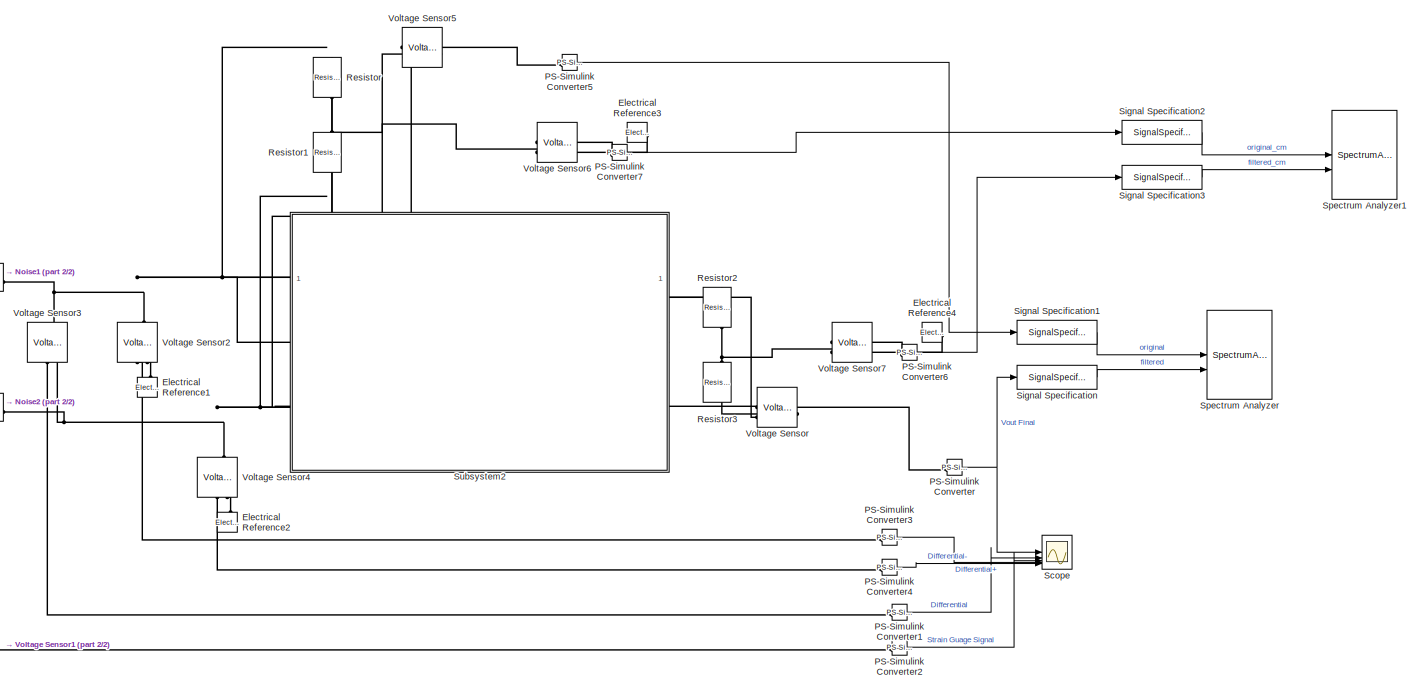
[diagram: root canvas - part 1/2, right side, full height]
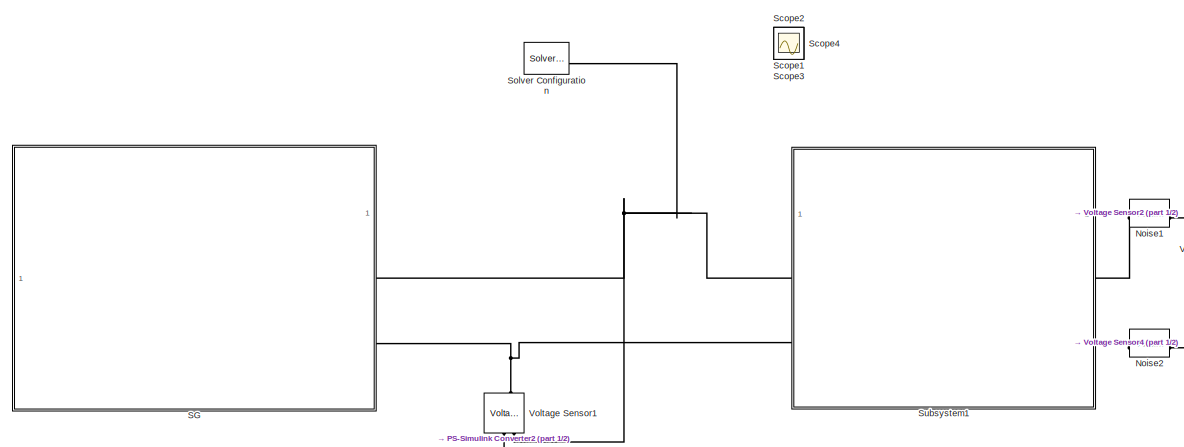
[diagram: root canvas - part 2/2, middle left region]
MODEL slx_d1087c4867b9
KIND model
CONFIG AbsTol = auto
CONFIG EnableMultiTasking = off
CONFIG FixedStep = 1/100000
CONFIG MaxStep = auto
CONFIG MinStep = auto
CONFIG RelTol = 1e-3
CONFIG SampleTimeConstraint = Unconstrained
CONFIG SolverName = FixedStepAuto
CONFIG StartTime = 0.0
CONFIG StopTime = 1
BLOCK [Reference] Electrical Reference1  REF=fl_lib/Electrical/Electrical Elements/Electrical Reference
  LibrarySourceBlock = ee_lib/Connectors &\nReferences/Electrical Reference
  NameLocation = right
  SourceBlock = fl_lib/Electrical/Electrical Elements/Electrical Reference
  SourceType = Electrical Reference
BLOCK [Reference] Electrical Reference2  REF=fl_lib/Electrical/Electrical Elements/Electrical Reference
  LibrarySourceBlock = ee_lib/Connectors &\nReferences/Electrical Reference
  NameLocation = right
  SourceBlock = fl_lib/Electrical/Electrical Elements/Electrical Reference
  SourceType = Electrical Reference
BLOCK [Reference] Electrical Reference3  REF=fl_lib/Electrical/Electrical Elements/Electrical Reference
  LibrarySourceBlock = ee_lib/Connectors &\nReferences/Electrical Reference
  NameLocation = top
  SourceBlock = fl_lib/Electrical/Electrical Elements/Electrical Reference
  SourceType = Electrical Reference
BLOCK [Reference] Electrical Reference4  REF=fl_lib/Electrical/Electrical Elements/Electrical Reference
  LibrarySourceBlock = ee_lib/Connectors &\nReferences/Electrical Reference
  NameLocation = top
  SourceBlock = fl_lib/Electrical/Electrical Elements/Electrical Reference
  SourceType = Electrical Reference
BLOCK [Reference] Noise1  REF=ee_lib/Sources/Voltage Source
  SourceBlock = ee_lib/Sources/Voltage Source
  SourceType = Voltage Source
BLOCK [Reference] Noise2  REF=ee_lib/Sources/Voltage Source
  SourceBlock = ee_lib/Sources/Voltage Source
  SourceType = Voltage Source
BLOCK [Reference] PS-Simulink Converter  REF=nesl_utility/PS-Simulink
Converter
  SourceBlock = nesl_utility/PS-Simulink\nConverter
  SourceType = PS-Simulink\nConverter
BLOCK [Reference] PS-Simulink Converter1  REF=nesl_utility/PS-Simulink
Converter
  SourceBlock = nesl_utility/PS-Simulink\nConverter
  SourceType = PS-Simulink\nConverter
BLOCK [Reference] PS-Simulink Converter2  REF=nesl_utility/PS-Simulink
Converter
  SourceBlock = nesl_utility/PS-Simulink\nConverter
  SourceType = PS-Simulink\nConverter
BLOCK [Reference] PS-Simulink Converter3  REF=nesl_utility/PS-Simulink
Converter
  SourceBlock = nesl_utility/PS-Simulink\nConverter
  SourceType = PS-Simulink\nConverter
BLOCK [Reference] PS-Simulink Converter4  REF=nesl_utility/PS-Simulink
Converter
  SourceBlock = nesl_utility/PS-Simulink\nConverter
  SourceType = PS-Simulink\nConverter
BLOCK [Reference] PS-Simulink Converter5  REF=nesl_utility/PS-Simulink
Converter
  SourceBlock = nesl_utility/PS-Simulink\nConverter
  SourceType = PS-Simulink\nConverter
BLOCK [Reference] PS-Simulink Converter6  REF=nesl_utility/PS-Simulink
Converter
  SourceBlock = nesl_utility/PS-Simulink\nConverter
  SourceType = PS-Simulink\nConverter
BLOCK [Reference] PS-Simulink Converter7  REF=nesl_utility/PS-Simulink
Converter
  SourceBlock = nesl_utility/PS-Simulink\nConverter
  SourceType = PS-Simulink\nConverter
BLOCK [Reference] Resistor  REF=fl_lib/Electrical/Electrical Elements/Resistor
  NameLocation = left
  SourceBlock = fl_lib/Electrical/Electrical Elements/Resistor
  SourceType = Resistor
BLOCK [Reference] Resistor1  REF=fl_lib/Electrical/Electrical Elements/Resistor
  NameLocation = left
  SourceBlock = fl_lib/Electrical/Electrical Elements/Resistor
  SourceType = Resistor
BLOCK [Reference] Resistor2  REF=fl_lib/Electrical/Electrical Elements/Resistor
  NameLocation = left
  SourceBlock = fl_lib/Electrical/Electrical Elements/Resistor
  SourceType = Resistor
BLOCK [Reference] Resistor3  REF=fl_lib/Electrical/Electrical Elements/Resistor
  NameLocation = left
  SourceBlock = fl_lib/Electrical/Electrical Elements/Resistor
  SourceType = Resistor
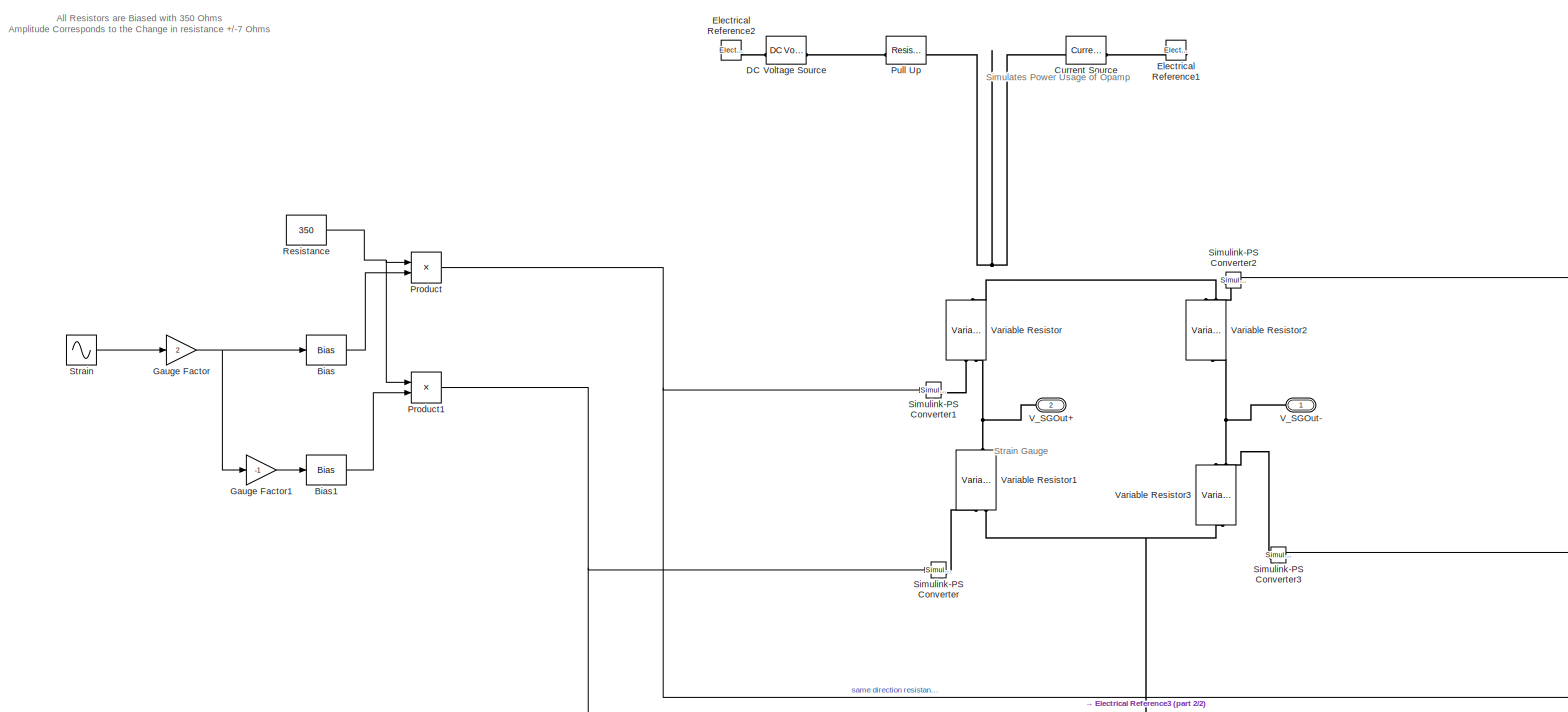
[diagram: SG - part 1/2, most of the canvas]
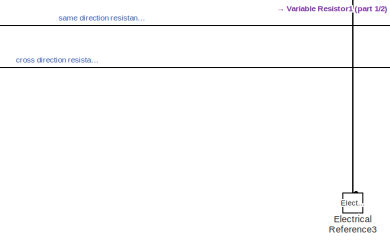
[diagram: SG - part 2/2, bottom center region]
BLOCK [SubSystem] SG
BLOCK [Bias] SG/Bias
  Bias = 1
  SaturateOnIntegerOverflow = off
BLOCK [Bias] SG/Bias1
  Bias = 1
  SaturateOnIntegerOverflow = off
BLOCK [Reference] SG/Current Source  REF=ee_lib/Sources/Current Source
  SourceBlock = ee_lib/Sources/Current Source
  SourceType = Current Source
BLOCK [Reference] SG/DC Voltage Source  REF=ee_lib/Additional
Components/SPICE Sources/DC Voltage Source
  SourceBlock = ee_lib/Additional\nComponents/SPICE Sources/DC Voltage Source
  SourceType = DC Voltage Source
BLOCK [Reference] SG/Electrical Reference1  REF=fl_lib/Electrical/Electrical Elements/Electrical Reference
  LibrarySourceBlock = ee_lib/Connectors &\nReferences/Electrical Reference
  NameLocation = top
  SourceBlock = fl_lib/Electrical/Electrical Elements/Electrical Reference
  SourceType = Electrical Reference
BLOCK [Reference] SG/Electrical Reference2  REF=fl_lib/Electrical/Electrical Elements/Electrical Reference
  LibrarySourceBlock = ee_lib/Connectors &\nReferences/Electrical Reference
  SourceBlock = fl_lib/Electrical/Electrical Elements/Electrical Reference
  SourceType = Electrical Reference
BLOCK [Reference] SG/Electrical Reference3  REF=fl_lib/Electrical/Electrical Elements/Electrical Reference
  LibrarySourceBlock = ee_lib/Connectors &\nReferences/Electrical Reference
  NameLocation = right
  SourceBlock = fl_lib/Electrical/Electrical Elements/Electrical Reference
  SourceType = Electrical Reference
BLOCK [Gain] SG/Gauge Factor
  Gain = 2
BLOCK [Gain] SG/Gauge Factor1
  Gain = -1
BLOCK [Product] SG/Product
BLOCK [Product] SG/Product1
BLOCK [Reference] SG/Pull Up  REF=fl_lib/Electrical/Electrical Elements/Resistor
  SourceBlock = fl_lib/Electrical/Electrical Elements/Resistor
  SourceType = Resistor
BLOCK [Constant] SG/Resistance
  Value = 350
BLOCK [Reference] SG/Simulink-PS Converter  REF=nesl_utility/Simulink-PS
Converter
  SourceBlock = nesl_utility/Simulink-PS\nConverter
  SourceType = Simulink-PS\nConverter
BLOCK [Reference] SG/Simulink-PS Converter1  REF=nesl_utility/Simulink-PS
Converter
  SourceBlock = nesl_utility/Simulink-PS\nConverter
  SourceType = Simulink-PS\nConverter
BLOCK [Reference] SG/Simulink-PS Converter2  REF=nesl_utility/Simulink-PS
Converter
  NameLocation = top
  SourceBlock = nesl_utility/Simulink-PS\nConverter
  SourceType = Simulink-PS\nConverter
BLOCK [Reference] SG/Simulink-PS Converter3  REF=nesl_utility/Simulink-PS
Converter
  NameLocation = top
  SourceBlock = nesl_utility/Simulink-PS\nConverter
  SourceType = Simulink-PS\nConverter
BLOCK [Sin] SG/Strain
  Amplitude = 0.01
  Frequency = 60
  SampleTime = 0
BLOCK [PMIOPort] SG/V_SGOut+
  Port = 2
  Side = Right
BLOCK [PMIOPort] SG/V_SGOut-
  Side = Right
BLOCK [Reference] SG/Variable Resistor  REF=fl_lib/Electrical/Electrical Elements/Variable Resistor
  NameLocation = right
  SourceBlock = fl_lib/Electrical/Electrical Elements/Variable Resistor
  SourceType = Variable Resistor
BLOCK [Reference] SG/Variable Resistor1  REF=fl_lib/Electrical/Electrical Elements/Variable Resistor
  NameLocation = right
  SourceBlock = fl_lib/Electrical/Electrical Elements/Variable Resistor
  SourceType = Variable Resistor
BLOCK [Reference] SG/Variable Resistor2  REF=fl_lib/Electrical/Electrical Elements/Variable Resistor
  NameLocation = left
  SourceBlock = fl_lib/Electrical/Electrical Elements/Variable Resistor
  SourceType = Variable Resistor
BLOCK [Reference] SG/Variable Resistor3  REF=fl_lib/Electrical/Electrical Elements/Variable Resistor
  NameLocation = left
  SourceBlock = fl_lib/Electrical/Electrical Elements/Variable Resistor
  SourceType = Variable Resistor
BLOCK [Scope] Scope
  Floating = off
  NumInputPorts = 5
  ScopeSpecificationString = Simulink.scopes.TimeScopeBlockCfg('CurrentConfiguration', extmgr.ConfigurationSet(extmgr.Configuration('Core','General UI',true),extmgr.Configuration('Core','Source UI',true),extmgr.Configuration('Sources','WiredSimulink',true),extmgr.Configuration('Visuals','Time Domain',true,'SerializedDisplays',{struct('MinYLimReal','-3.58572','MaxYLimReal','3.73702','YLabelReal','','MinYLimMag','0.00000','MaxY...<+1679ch>
BLOCK [Scope] Scope1
  Floating = off
  IOType = viewer
  NumInputPorts = 1
  ScopeSpecificationString = Simulink.scopes.TimeScopeBlockCfg('CurrentConfiguration', extmgr.ConfigurationSet(extmgr.Configuration('Core','General UI',true),extmgr.Configuration('Core','Source UI',true),extmgr.Configuration('Sources','WiredSimulink',true,'DataLoggingVariableName','ScopeData1'),extmgr.Configuration('Visuals','Time Domain',true,'SerializedDisplays',{struct('MinYLimReal','-0.0125','MaxYLimReal','0.0125','YLabel...<+1448ch>
BLOCK [Scope] Scope2
  Floating = off
  IOType = viewer
  NumInputPorts = 1
  ScopeSpecificationString = Simulink.scopes.TimeScopeBlockCfg('CurrentConfiguration', extmgr.ConfigurationSet(extmgr.Configuration('Core','General UI',true),extmgr.Configuration('Core','Source UI',true),extmgr.Configuration('Sources','WiredSimulink',true,'DataLoggingVariableName','ScopeData2'),extmgr.Configuration('Visuals','Time Domain',true,'SerializedDisplays',{struct('MinYLimReal','350.975','MaxYLimReal','351.025','YLabe...<+1475ch>
BLOCK [Scope] Scope3
  Floating = off
  IOType = viewer
  NumInputPorts = 1
  ScopeSpecificationString = Simulink.scopes.TimeScopeBlockCfg('CurrentConfiguration', extmgr.ConfigurationSet(extmgr.Configuration('Core','General UI',true),extmgr.Configuration('Core','Source UI',true),extmgr.Configuration('Sources','WiredSimulink',true,'DataLoggingVariableName','ScopeData3'),extmgr.Configuration('Visuals','Time Domain',true,'SerializedDisplays',{struct('MinYLimReal','341.25001','MaxYLimReal','358.74999','Y...<+1517ch>
BLOCK [Scope] Scope4
  Floating = off
  IOType = viewer
  NumInputPorts = 1
  ScopeSpecificationString = Simulink.scopes.TimeScopeBlockCfg('CurrentConfiguration', extmgr.ConfigurationSet(extmgr.Configuration('Core','General UI',true),extmgr.Configuration('Core','Source UI',true),extmgr.Configuration('Sources','WiredSimulink',true,'DataLoggingVariableName','ScopeData4'),extmgr.Configuration('Visuals','Time Domain',true,'SerializedDisplays',{struct('MinYLimReal','341.25001','MaxYLimReal','358.74999','Y...<+1517ch>
BLOCK [SignalSpecification] Signal Specification
  SampleTime = 1/100000
BLOCK [SignalSpecification] Signal Specification1
  SampleTime = 1/100000
BLOCK [SignalSpecification] Signal Specification2
  SampleTime = 1/100000
BLOCK [SignalSpecification] Signal Specification3
  SampleTime = 1/100000
BLOCK [Reference] Solver Configuration  REF=nesl_utility/Solver
Configuration
  SourceBlock = nesl_utility/Solver\nConfiguration
  SourceType = Solver\nConfiguration
BLOCK [SpectrumAnalyzer] Spectrum Analyzer
  AveragingMethod = Exponential
  GraphicalSettings = {"GraphicalSettings":{"Style":{"BackgroundColor":[0.12941176470588237,0.12941176470588237,0.12941176470588237],"AxesColor":[0.07058823529411765,0.07058823529411765,0.07058823529411765],"LabelsColor":[0.8509803921568627,0.8509803921568627,0.8509803921568627],"PreserveColors":false,"Visible":[true,true],"LineStyle":["-","-"],"LineWidth":[1.5,1.5],"BarWidth":[0.9,0.9],"LineColor":[[1,0.90980392156862...<+1087ch>
  Method = Welch
  NumInputPorts = 2
  PlotAsTwoSidedSpectrum = off
  ScopeFrameLocation = window
  ShowLegend = on
  Visible = on
  WasSavedAsWebScope = on
  WindowPosition = [5298.000000,319.000000,1421.000000,956.000000,]
  YLimits = [-21.588802607835852,-8.732917033098683]
BLOCK [SpectrumAnalyzer] Spectrum Analyzer1
  AveragingMethod = Exponential
  GraphicalSettings = {"GraphicalSettings":{"Style":{"BackgroundColor":[0.12941176470588237,0.12941176470588237,0.12941176470588237],"AxesColor":[0.07058823529411765,0.07058823529411765,0.07058823529411765],"LabelsColor":[0.8509803921568627,0.8509803921568627,0.8509803921568627],"PreserveColors":false,"Visible":[true,true],"LineStyle":["-","-"],"LineWidth":[1.5,1.5],"BarWidth":[0.9,0.9],"LineColor":[[1,0.90980392156862...<+1087ch>
  Method = Welch
  NumInputPorts = 2
  PlotAsTwoSidedSpectrum = off
  ScopeFrameLocation = window
  ShowLegend = on
  Visible = on
  WasSavedAsWebScope = on
  WindowPosition = [6433.000000,150.000000,1421.000000,956.000000,]
  YLimits = [-37.37311961183558,-7.094692694061745]
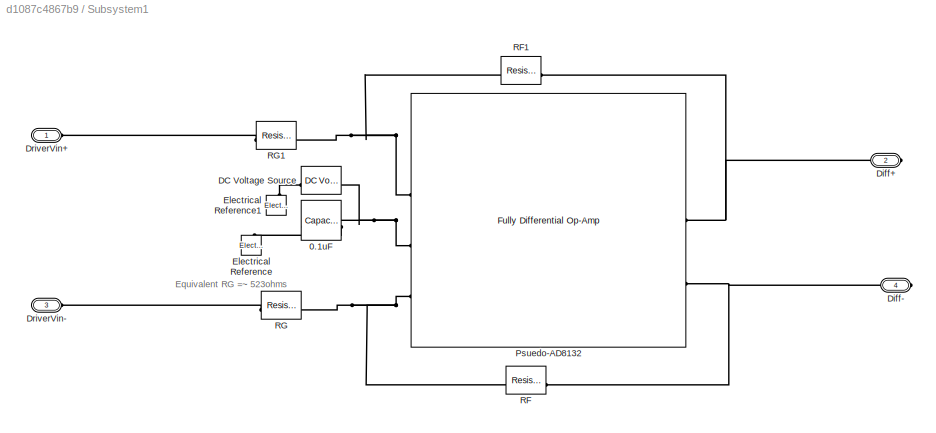
BLOCK [SubSystem] Subsystem1
BLOCK [Reference] Subsystem1/0.1uF  REF=ee_lib/Passive/Capacitor
  NameLocation = top
  SourceBlock = ee_lib/Passive/Capacitor
  SourceType = Capacitor
BLOCK [Reference] Subsystem1/DC Voltage Source  REF=ee_lib/Additional
Components/SPICE Sources/DC Voltage Source
  SourceBlock = ee_lib/Additional\nComponents/SPICE Sources/DC Voltage Source
  SourceType = DC Voltage Source
BLOCK [PMIOPort] Subsystem1/Diff+
  Port = 2
  Side = Right
BLOCK [PMIOPort] Subsystem1/Diff-
  Port = 4
  Side = Right
BLOCK [PMIOPort] Subsystem1/DriverVin+
  Side = Left
BLOCK [PMIOPort] Subsystem1/DriverVin-
  Port = 3
  Side = Left
BLOCK [Reference] Subsystem1/Electrical Reference  REF=fl_lib/Electrical/Electrical Elements/Electrical Reference
  LibrarySourceBlock = ee_lib/Connectors &\nReferences/Electrical Reference
  NameLocation = right
  SourceBlock = fl_lib/Electrical/Electrical Elements/Electrical Reference
  SourceType = Electrical Reference
BLOCK [Reference] Subsystem1/Electrical Reference1  REF=fl_lib/Electrical/Electrical Elements/Electrical Reference
  LibrarySourceBlock = ee_lib/Connectors &\nReferences/Electrical Reference
  NameLocation = right
  SourceBlock = fl_lib/Electrical/Electrical Elements/Electrical Reference
  SourceType = Electrical Reference
BLOCK [Reference] Subsystem1/Psuedo-AD8132  REF=ee_lib/Integrated Circuits/Fully Differential
Op-Amp
  SourceBlock = ee_lib/Integrated Circuits/Fully Differential\nOp-Amp
  SourceType = Fully Differential\nOp-Amp
BLOCK [Reference] Subsystem1/RF  REF=ee_lib/Passive/Resistor
  SourceBlock = ee_lib/Passive/Resistor
  SourceType = Resistor
BLOCK [Reference] Subsystem1/RF1  REF=ee_lib/Passive/Resistor
  SourceBlock = ee_lib/Passive/Resistor
  SourceType = Resistor
BLOCK [Reference] Subsystem1/RG  REF=ee_lib/Passive/Resistor
  SourceBlock = ee_lib/Passive/Resistor
  SourceType = Resistor
BLOCK [Reference] Subsystem1/RG1  REF=fl_lib/Electrical/Electrical Elements/Resistor
  SourceBlock = fl_lib/Electrical/Electrical Elements/Resistor
  SourceType = Resistor
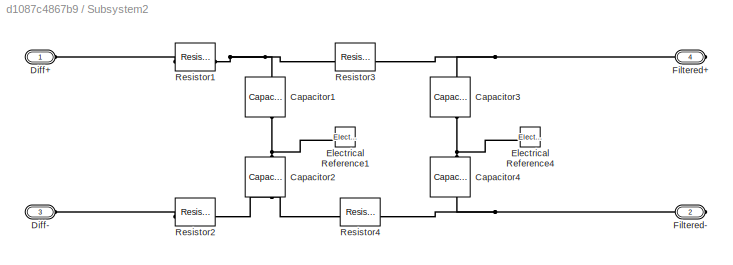
BLOCK [SubSystem] Subsystem2
BLOCK [Reference] Subsystem2/Capacitor1  REF=ee_lib/Passive/Capacitor
  NameLocation = left
  SourceBlock = ee_lib/Passive/Capacitor
  SourceType = Capacitor
BLOCK [Reference] Subsystem2/Capacitor2  REF=ee_lib/Passive/Capacitor
  NameLocation = left
  SourceBlock = ee_lib/Passive/Capacitor
  SourceType = Capacitor
BLOCK [Reference] Subsystem2/Capacitor3  REF=ee_lib/Passive/Capacitor
  NameLocation = left
  SourceBlock = ee_lib/Passive/Capacitor
  SourceType = Capacitor
BLOCK [Reference] Subsystem2/Capacitor4  REF=ee_lib/Passive/Capacitor
  NameLocation = left
  SourceBlock = ee_lib/Passive/Capacitor
  SourceType = Capacitor
BLOCK [PMIOPort] Subsystem2/Diff+
  Side = Left
BLOCK [PMIOPort] Subsystem2/Diff-
  Port = 3
  Side = Left
BLOCK [Reference] Subsystem2/Electrical Reference1  REF=fl_lib/Electrical/Electrical Elements/Electrical Reference
  LibrarySourceBlock = ee_lib/Connectors &\nReferences/Electrical Reference
  NameLocation = top
  SourceBlock = fl_lib/Electrical/Electrical Elements/Electrical Reference
  SourceType = Electrical Reference
BLOCK [Reference] Subsystem2/Electrical Reference4  REF=fl_lib/Electrical/Electrical Elements/Electrical Reference
  LibrarySourceBlock = ee_lib/Connectors &\nReferences/Electrical Reference
  NameLocation = top
  SourceBlock = fl_lib/Electrical/Electrical Elements/Electrical Reference
  SourceType = Electrical Reference
BLOCK [PMIOPort] Subsystem2/Filtered+
  NameLocation = top
  Port = 4
  Side = Right
BLOCK [PMIOPort] Subsystem2/Filtered-
  NameLocation = top
  Port = 2
  Side = Right
BLOCK [Reference] Subsystem2/Resistor1  REF=ee_lib/Passive/Resistor
  SourceBlock = ee_lib/Passive/Resistor
  SourceType = Resistor
BLOCK [Reference] Subsystem2/Resistor2  REF=ee_lib/Passive/Resistor
  SourceBlock = ee_lib/Passive/Resistor
  SourceType = Resistor
BLOCK [Reference] Subsystem2/Resistor3  REF=ee_lib/Passive/Resistor
  SourceBlock = ee_lib/Passive/Resistor
  SourceType = Resistor
BLOCK [Reference] Subsystem2/Resistor4  REF=ee_lib/Passive/Resistor
  SourceBlock = ee_lib/Passive/Resistor
  SourceType = Resistor
BLOCK [Reference] Voltage Sensor  REF=fl_lib/Electrical/Electrical Sensors/Voltage Sensor
  NameLocation = top
  SourceBlock = fl_lib/Electrical/Electrical Sensors/Voltage Sensor
  SourceType = Voltage Sensor
BLOCK [Reference] Voltage Sensor1  REF=fl_lib/Electrical/Electrical Sensors/Voltage Sensor
  NameLocation = right
  SourceBlock = fl_lib/Electrical/Electrical Sensors/Voltage Sensor
  SourceType = Voltage Sensor
BLOCK [Reference] Voltage Sensor2  REF=fl_lib/Electrical/Electrical Sensors/Voltage Sensor
  NameLocation = right
  SourceBlock = fl_lib/Electrical/Electrical Sensors/Voltage Sensor
  SourceType = Voltage Sensor
BLOCK [Reference] Voltage Sensor3  REF=fl_lib/Electrical/Electrical Sensors/Voltage Sensor
  NameLocation = right
  SourceBlock = fl_lib/Electrical/Electrical Sensors/Voltage Sensor
  SourceType = Voltage Sensor
BLOCK [Reference] Voltage Sensor4  REF=fl_lib/Electrical/Electrical Sensors/Voltage Sensor
  NameLocation = right
  SourceBlock = fl_lib/Electrical/Electrical Sensors/Voltage Sensor
  SourceType = Voltage Sensor
BLOCK [Reference] Voltage Sensor5  REF=fl_lib/Electrical/Electrical Sensors/Voltage Sensor
  NameLocation = top
  SourceBlock = fl_lib/Electrical/Electrical Sensors/Voltage Sensor
  SourceType = Voltage Sensor
BLOCK [Reference] Voltage Sensor6  REF=fl_lib/Electrical/Electrical Sensors/Voltage Sensor
  NameLocation = top
  SourceBlock = fl_lib/Electrical/Electrical Sensors/Voltage Sensor
  SourceType = Voltage Sensor
BLOCK [Reference] Voltage Sensor7  REF=fl_lib/Electrical/Electrical Sensors/Voltage Sensor
  NameLocation = top
  SourceBlock = fl_lib/Electrical/Electrical Sensors/Voltage Sensor
  SourceType = Voltage Sensor
ANNOTATION SG: All Resistors are Biased with 350 Ohms Amplitude Corresponds to the Change in resistance +/-7 Ohms
ANNOTATION SG: Simulates Power Usage of Opamp
ANNOTATION SG: Strain Gauge
ANNOTATION Subsystem1: Equivalent RG =~ 523ohms
LINE PS-Simulink Converter1:1 -> Scope:2
LINE PS-Simulink Converter2:1 -> Scope:3
LINE PS-Simulink Converter3:1 -> Scope:4
LINE PS-Simulink Converter4:1 -> Scope:5
LINE PS-Simulink Converter5:1 -> Signal Specification1:1
LINE PS-Simulink Converter6:1 -> Signal Specification3:1
LINE PS-Simulink Converter7:1 -> Signal Specification2:1
NET PS-Simulink Converter:1 -> Scope:1, Signal Specification:1
LINE SG/Bias1:1 -> SG/Product1:2
LINE SG/Bias:1 -> SG/Product:2
LINE SG/Gauge Factor1:1 -> SG/Bias1:1
NET SG/Gauge Factor:1 -> SG/Bias:1, SG/Gauge Factor1:1
NET SG/Product1:1 -> SG/Simulink-PS Converter2:1, SG/Simulink-PS Converter:1
NET SG/Product:1 -> SG/Simulink-PS Converter1:1, SG/Simulink-PS Converter3:1
NET SG/Resistance:1 -> SG/Product1:1, SG/Product:1
LINE SG/Strain:1 -> SG/Gauge Factor:1
LINE Signal Specification1:1 -> Spectrum Analyzer:1
LINE Signal Specification2:1 -> Spectrum Analyzer1:1
LINE Signal Specification3:1 -> Spectrum Analyzer1:2
LINE Signal Specification:1 -> Spectrum Analyzer:2
PLINE Electrical Reference1:LConn1 -- Voltage Sensor2:RConn2
PLINE Electrical Reference2:LConn1 -- Voltage Sensor4:RConn2
PLINE Electrical Reference3:LConn1 -- Voltage Sensor6:RConn2
PLINE Electrical Reference4:LConn1 -- Voltage Sensor7:RConn2
PNET net1: Noise1:LConn1 -- Resistor:LConn1 -- Subsystem2:LConn1 -- Voltage Sensor2:LConn1 -- Voltage Sensor3:LConn1 -- Voltage Sensor5:LConn1
PLINE Noise1:RConn1 -- Subsystem1:RConn1
PNET net2: Noise2:LConn1 -- Resistor1:RConn1 -- Subsystem2:LConn2 -- Voltage Sensor3:RConn2 -- Voltage Sensor4:LConn1 -- Voltage Sensor5:RConn2
PLINE Noise2:RConn1 -- Subsystem1:RConn2
PLINE PS-Simulink Converter1:LConn1 -- Voltage Sensor3:RConn1
PLINE PS-Simulink Converter2:LConn1 -- Voltage Sensor1:RConn1
PLINE PS-Simulink Converter3:LConn1 -- Voltage Sensor2:RConn1
PLINE PS-Simulink Converter4:LConn1 -- Voltage Sensor4:RConn1
PLINE PS-Simulink Converter5:LConn1 -- Voltage Sensor5:RConn1
PLINE PS-Simulink Converter6:LConn1 -- Voltage Sensor7:RConn1
PLINE PS-Simulink Converter7:LConn1 -- Voltage Sensor6:RConn1
PLINE PS-Simulink Converter:LConn1 -- Voltage Sensor:RConn1
PNET net3: Resistor1:LConn1 -- Resistor:RConn1 -- Voltage Sensor6:LConn1
PNET net4: Resistor2:LConn1 -- Subsystem2:RConn1 -- Voltage Sensor:RConn2
PNET net5: Resistor2:RConn1 -- Resistor3:LConn1 -- Voltage Sensor7:LConn1
PNET net6: Resistor3:RConn1 -- Subsystem2:RConn2 -- Voltage Sensor:LConn1
PLINE SG/Current Source:LConn1 -- SG/Electrical Reference1:LConn1
PNET net7: SG/Current Source:RConn1 -- SG/Pull Up:RConn1 -- SG/Variable Resistor2:LConn2 -- SG/Variable Resistor:RConn1
PLINE SG/DC Voltage Source:LConn1 -- SG/Pull Up:LConn1
PLINE SG/DC Voltage Source:RConn1 -- SG/Electrical Reference2:LConn1
PNET net8: SG/Electrical Reference3:LConn1 -- SG/Variable Resistor1:LConn2 -- SG/Variable Resistor3:RConn1
PLINE SG/Simulink-PS Converter1:RConn1 -- SG/Variable Resistor:LConn1
PLINE SG/Simulink-PS Converter2:RConn1 -- SG/Variable Resistor2:LConn1
PLINE SG/Simulink-PS Converter3:RConn1 -- SG/Variable Resistor3:LConn1
PLINE SG/Simulink-PS Converter:RConn1 -- SG/Variable Resistor1:LConn1
PNET net9: SG/V_SGOut+:RConn1 -- SG/Variable Resistor1:RConn1 -- SG/Variable Resistor:LConn2
PNET net10: SG/V_SGOut-:RConn1 -- SG/Variable Resistor2:RConn1 -- SG/Variable Resistor3:LConn2
PNET net11: SG:RConn1 -- Solver Configuration:RConn1 -- Subsystem1:LConn1 -- Voltage Sensor1:RConn2
PNET net12: SG:RConn2 -- Subsystem1:LConn2 -- Voltage Sensor1:LConn1
PNET net13: Subsystem1/0.1uF:LConn1 -- Subsystem1/DC Voltage Source:LConn1 -- Subsystem1/Psuedo-AD8132:LConn2
PLINE Subsystem1/0.1uF:RConn1 -- Subsystem1/Electrical Reference:LConn1
PLINE Subsystem1/DC Voltage Source:RConn1 -- Subsystem1/Electrical Reference1:LConn1
PNET net14: Subsystem1/Diff+:RConn1 -- Subsystem1/Psuedo-AD8132:RConn1 -- Subsystem1/RF1:RConn1
PNET net15: Subsystem1/Diff-:RConn1 -- Subsystem1/Psuedo-AD8132:RConn2 -- Subsystem1/RF:RConn1
PLINE Subsystem1/DriverVin+:RConn1 -- Subsystem1/RG1:LConn1
PLINE Subsystem1/DriverVin-:RConn1 -- Subsystem1/RG:LConn1
PNET net16: Subsystem1/Psuedo-AD8132:LConn1 -- Subsystem1/RF1:LConn1 -- Subsystem1/RG1:RConn1
PNET net17: Subsystem1/Psuedo-AD8132:LConn3 -- Subsystem1/RF:LConn1 -- Subsystem1/RG:RConn1
PNET net18: Subsystem2/Capacitor1:LConn1 -- Subsystem2/Resistor1:RConn1 -- Subsystem2/Resistor3:LConn1
PNET net19: Subsystem2/Capacitor1:RConn1 -- Subsystem2/Capacitor2:LConn1 -- Subsystem2/Electrical Reference1:LConn1
PNET net20: Subsystem2/Capacitor2:RConn1 -- Subsystem2/Resistor2:RConn1 -- Subsystem2/Resistor4:LConn1
PNET net21: Subsystem2/Capacitor3:LConn1 -- Subsystem2/Filtered+:RConn1 -- Subsystem2/Resistor3:RConn1
PNET net22: Subsystem2/Capacitor3:RConn1 -- Subsystem2/Capacitor4:LConn1 -- Subsystem2/Electrical Reference4:LConn1
PNET net23: Subsystem2/Capacitor4:RConn1 -- Subsystem2/Filtered-:RConn1 -- Subsystem2/Resistor4:RConn1
PLINE Subsystem2/Diff+:RConn1 -- Subsystem2/Resistor1:LConn1
PLINE Subsystem2/Diff-:RConn1 -- Subsystem2/Resistor2:LConn1
note: NET lines group one-source signal fan-out (src -> all destinations, sorted); 1:1 wires keep LINE; PNET lines group multi-terminal physical nets as a canonical sorted terminal list (undirected conserving connections); 2-terminal nets keep the pairwise PLINE form
